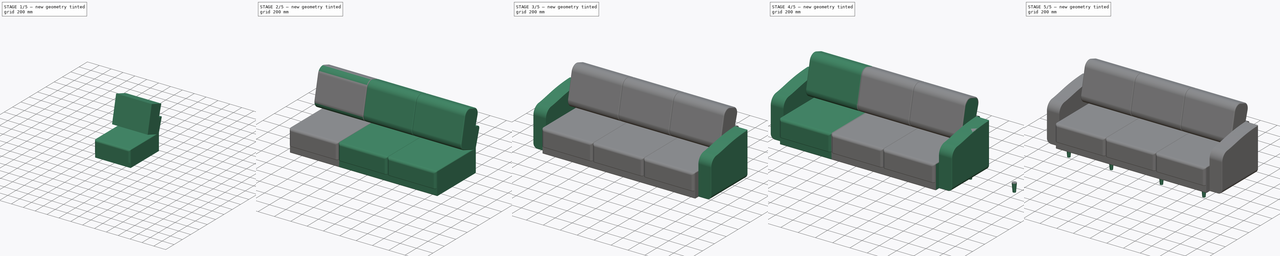
[diagram: build sequence overview — one tinted view per stage of 5, left to right]
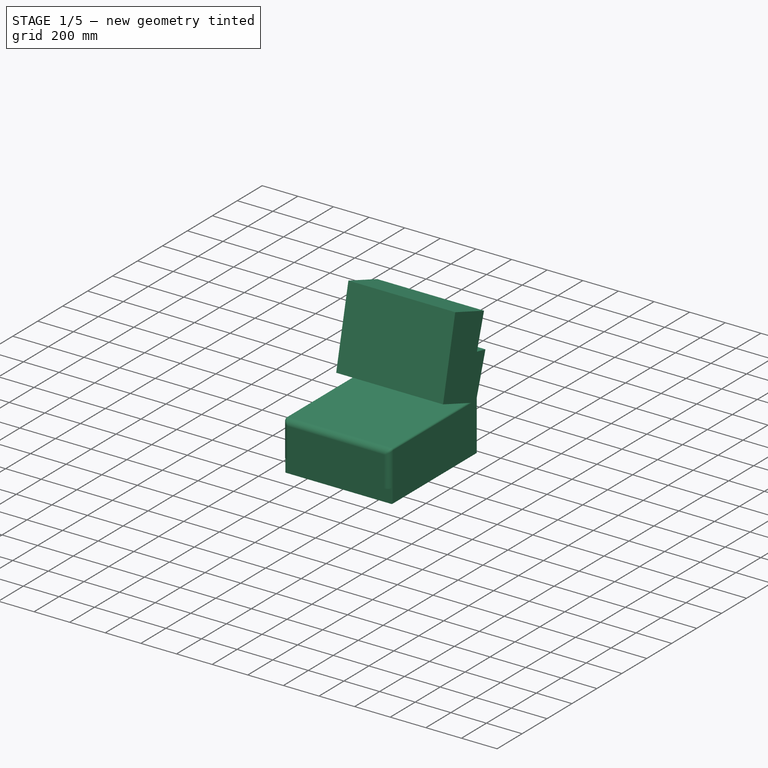
[diagram: stage 1 of 5 — iso view after this stage's code; geometry added in this stage tinted green]
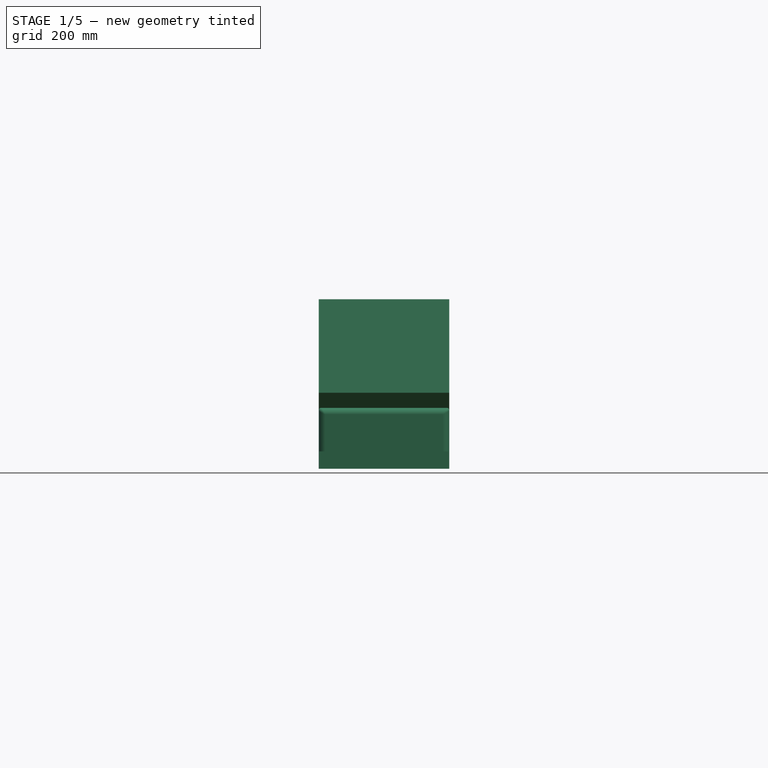
[diagram: stage 1 of 5 — front view after this stage's code; geometry added in this stage tinted green]
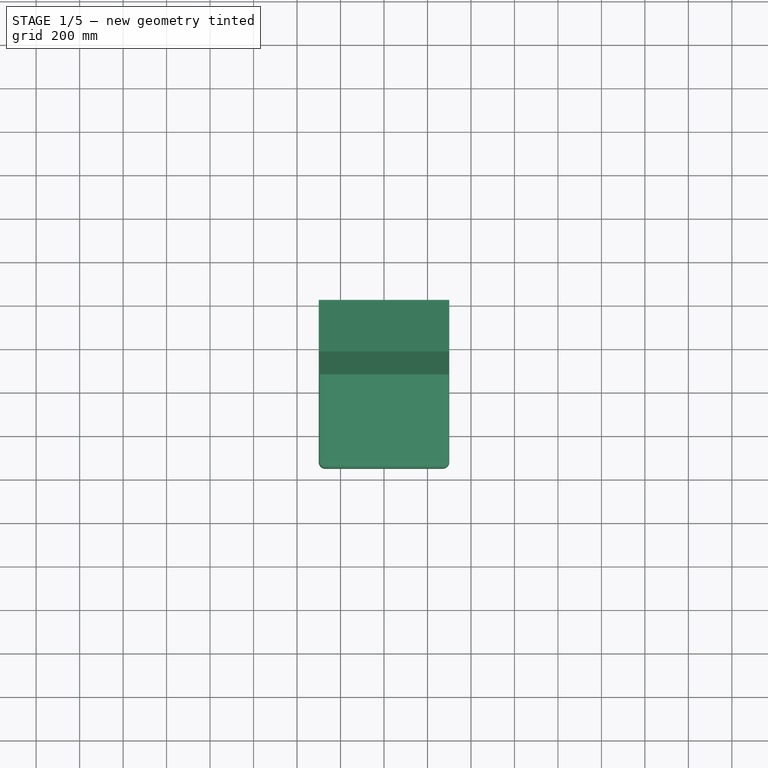
[diagram: stage 1 of 5 — top view after this stage's code; geometry added in this stage tinted green]
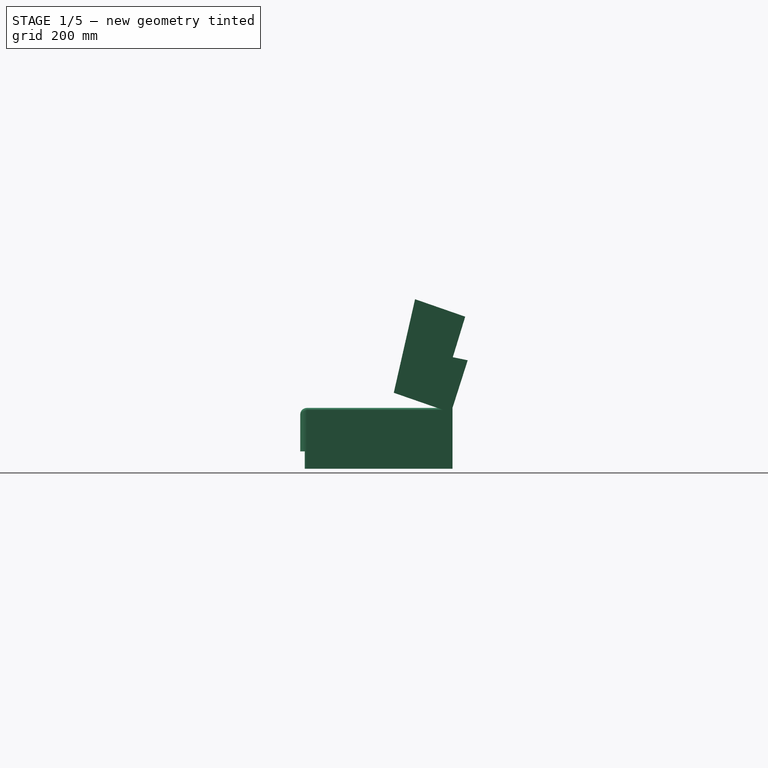
[diagram: stage 1 of 5 — right view after this stage's code; geometry added in this stage tinted green]
FCSTD DOCUMENT  (FreeCAD 1.0R39109 (Git))
Label: sofa
License: All rights reserved
LicenseURL: https://en.wikipedia.org/wiki/All_rights_reserved
objects: Sketcher::SketchObject×17, PartDesign::Pad×14, PartDesign::Fillet×11, PartDesign::Plane×9, PartDesign::Body×9, PartDesign::ShapeBinder×8, PartDesign::Pocket×3, App::Part×3, Part::FeaturePython×2, PartDesign::LinearPattern×1
note: 148 computed .brp shape members not serialized (recipe doc carries the construction recipe); baked Part::Feature solids carry a one-line shape summary decoded from their .brp

FEATURE [Sketcher::SketchObject] Sketch
  ArcFitTolerance = 1e-06
  AttachmentSupport = -> [XZ_Plane]
  FullyConstrained = true
  MakeInternals = false
  MapMode = 5
  Placement = pos=(0,0,0) rot=(1,0,0;1.5708rad)
  sketch-geometry (4):
    g0: LineSegment StartX=-300 StartY=380 StartZ=0 EndX=-300 EndY=180 EndZ=0
    g1: LineSegment StartX=-300 StartY=180 StartZ=0 EndX=300 EndY=180 EndZ=0
    g2: LineSegment StartX=300 StartY=180 StartZ=0 EndX=300 EndY=380 EndZ=0
    g3: LineSegment StartX=300 StartY=380 StartZ=0 EndX=-300 EndY=380 EndZ=0
  constraints (11):
    c: Coincident(g0,g1)
    c: Coincident(g1,g2)
    c: Coincident(g2,g3)
    c: Coincident(g3,g0)
    c: Vertical(g0)
    c: Vertical(g2)
    c: Horizontal(g1)
    c: Distance(g0,g2) = 600
    c: Distance(g1,g3) = 200
    c: Symmetric(g0,g2,g-2)
    c: DistanceY(g-1,g1) = 180
FEATURE [PartDesign::Pad] Pad
  Direction = (0,-1,2e-16)
  Length = 700
  Length2 = 10
  Midplane = true
  Placement = pos=(0,0,0) rot=(1,0,0;1.5708rad)
  Profile = -> Sketch
  ReferenceAxis = -> Sketch [N_Axis]
  Refine = true
  Suppressed = false
  Type = 0
FEATURE [Sketcher::SketchObject] Sketch001
  ArcFitTolerance = 1e-06
  AttachmentSupport = -> [YZ_Plane]
  ExternalGeometry = -> [Pad]
  FullyConstrained = false
  MakeInternals = false
  MapMode = 5
  Placement = pos=(0,0,0) rot=(0.57735,0.57735,0.57735;2.0944rad)
  sketch-geometry (6):
    g0: LineSegment StartX=350 StartY=380 StartZ=0 EndX=420 EndY=599.2 EndZ=0
    g1: LineSegment [constr] StartX=350 StartY=380 StartZ=0 EndX=420 EndY=380 EndZ=0
    g2: LineSegment [constr] StartX=420 StartY=380 StartZ=0 EndX=420 EndY=599.2 EndZ=0
    g3: LineSegment StartX=420 StartY=599.2 StartZ=0 EndX=351.422 EndY=613.236 EndZ=0
    g4: LineSegment StartX=351.422 StartY=613.236 StartZ=0 EndX=280 EndY=380 EndZ=0
    g5: LineSegment StartX=280 StartY=380 StartZ=0 EndX=350 EndY=380 EndZ=0
  constraints (14):
    c: Coincident(g0,g-4)
    c: Coincident(g1,g0)
    c: Horizontal(g1)
    c: Coincident(g2,g1)
    c: Coincident(g2,g0)
    c: Vertical(g2)
    c: Coincident(g3,g0)
    c: PointOnObject(g4,g-3)
    c: Coincident(g5,g4)
    c: Coincident(g5,g0)
    c: DistanceX(g1,g1) = 70
    c: DistanceX(g5,g5) = 70
    c: Equal(g5,g3)
    c: Coincident(g4,g3)
FEATURE [PartDesign::Pad] Pad001
  BaseFeature = -> Pad
  Direction = (1,0,0)
  Length = 600
  Length2 = 10
  Midplane = true
  Placement = pos=(0,0,0) rot=(1,0,0;1.5708rad)
  Profile = -> Sketch001
  ReferenceAxis = -> Sketch001 [N_Axis]
  Suppressed = false
  Type = 0
FEATURE [Sketcher::SketchObject] Sketch002
  ArcFitTolerance = 1e-06
  AttachmentSupport = -> [Pad001]
  ExternalGeometry = -> [Pad001]
  FullyConstrained = false
  MakeInternals = false
  MapMode = 5
  Placement = pos=(300,0,0) rot=(0.707107,0,0.707107;3.14159rad)
  sketch-geometry (4):
    g0: LineSegment StartX=380 StartY=-280 StartZ=0 EndX=449.666 EndY=-80 EndZ=0
    g1: LineSegment StartX=449.666 StartY=-80 StartZ=0 EndX=880 EndY=-177.889 EndZ=0
    g2: LineSegment StartX=880 StartY=-177.889 StartZ=0 EndX=799.667 EndY=-408.511 EndZ=0
    g3: LineSegment StartX=799.667 StartY=-408.511 StartZ=0 EndX=380 EndY=-280 EndZ=0
  constraints (9):
    c: Coincident(g0,g-4)
    c: DistanceY(g0,g0) = 200
    c: Coincident(g1,g0)
    c: DistanceX(g0,g1) = 500
    c: Coincident(g2,g1)
    c: Coincident(g3,g2)
    c: Coincident(g3,g0)
    c: Parallel(g2,g0)
    c: Parallel(g3,g-3)
FEATURE [PartDesign::Pad] Pad002
  BaseFeature = -> Pad001
  Direction = (1,0,-2e-16)
  Length = 600
  Length2 = 10
  Placement = pos=(0,0,0) rot=(1,0,0;1.5708rad)
  Profile = -> Sketch002
  ReferenceAxis = -> Sketch002 [N_Axis]
  Reversed = true
  Suppressed = false
  Type = 0
FEATURE [Sketcher::SketchObject] Sketch003
  ArcFitTolerance = 1e-06
  AttachmentSupport = -> [Pad002]
  ExternalGeometry = -> [Pad002]
  FullyConstrained = false
  MakeInternals = false
  MapMode = 5
  Placement = pos=(300,0,0) rot=(0.707107,0,0.707107;3.14159rad)
  sketch-geometry (4):
    g0: LineSegment StartX=180 StartY=-350 StartZ=0 EndX=180 EndY=329.78 EndZ=0
    g1: LineSegment StartX=180 StartY=329.78 StartZ=0 EndX=100 EndY=329.78 EndZ=0
    g2: LineSegment StartX=100 StartY=329.78 StartZ=0 EndX=100 EndY=-350 EndZ=0
    g3: LineSegment StartX=100 StartY=-350 StartZ=0 EndX=180 EndY=-350 EndZ=0
  constraints (10):
    c: Coincident(g0,g1)
    c: Coincident(g1,g2)
    c: Coincident(g2,g3)
    c: Coincident(g3,g0)
    c: Vertical(g0)
    c: Vertical(g2)
    c: Horizontal(g1)
    c: Horizontal(g3)
    c: Coincident(g0,g-3)
    c: DistanceX(g1,g0) = 80
FEATURE [PartDesign::Pad] Pad003
  BaseFeature = -> Pad002
  Direction = (1,0,-2e-16)
  Length = 600
  Length2 = 10
  Placement = pos=(0,0,0) rot=(1,0,0;1.5708rad)
  Profile = -> Sketch003
  ReferenceAxis = -> Sketch003 [N_Axis]
  Refine = true
  Reversed = true
  Suppressed = false
  Type = 0
FEATURE [PartDesign::Fillet] Fillet
  Base = -> Pad003 [Edge9,Edge10]
  BaseFeature = -> Pad003
  Placement = pos=(0,0,0) rot=(1,0,0;1.5708rad)
  Radius = 10
  Refine = true
  SupportTransform = false
  Suppressed = false
  UseAllEdges = false
FEATURE [PartDesign::Fillet] Fillet001
  Base = -> Fillet [Edge4]
  BaseFeature = -> Fillet
  Placement = pos=(0,0,0) rot=(1,0,0;1.5708rad)
  Radius = 30
  Refine = true
  SupportTransform = false
  Suppressed = false
  UseAllEdges = false
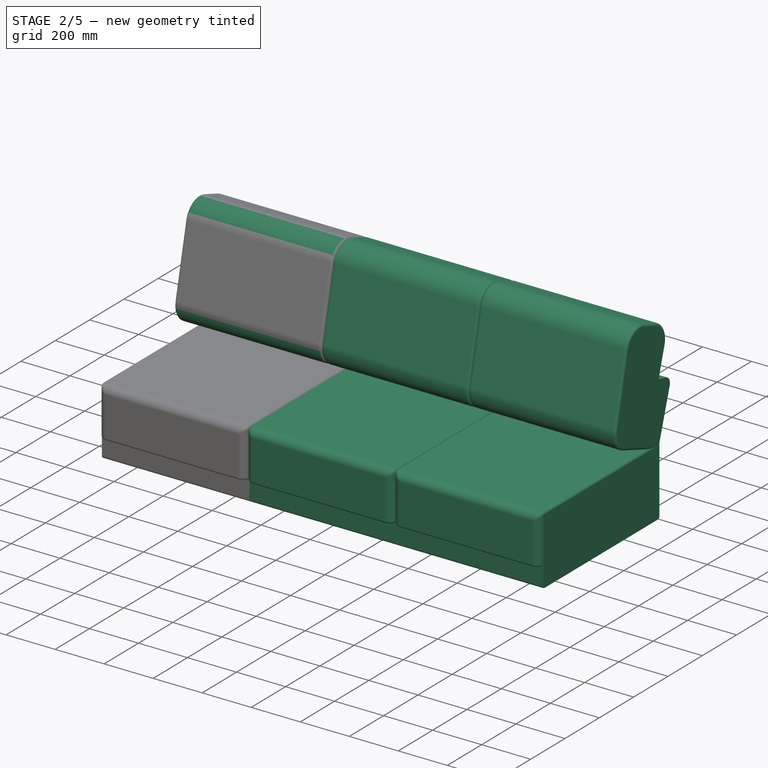
[diagram: stage 2 of 5 — iso view after this stage's code; geometry added in this stage tinted green]
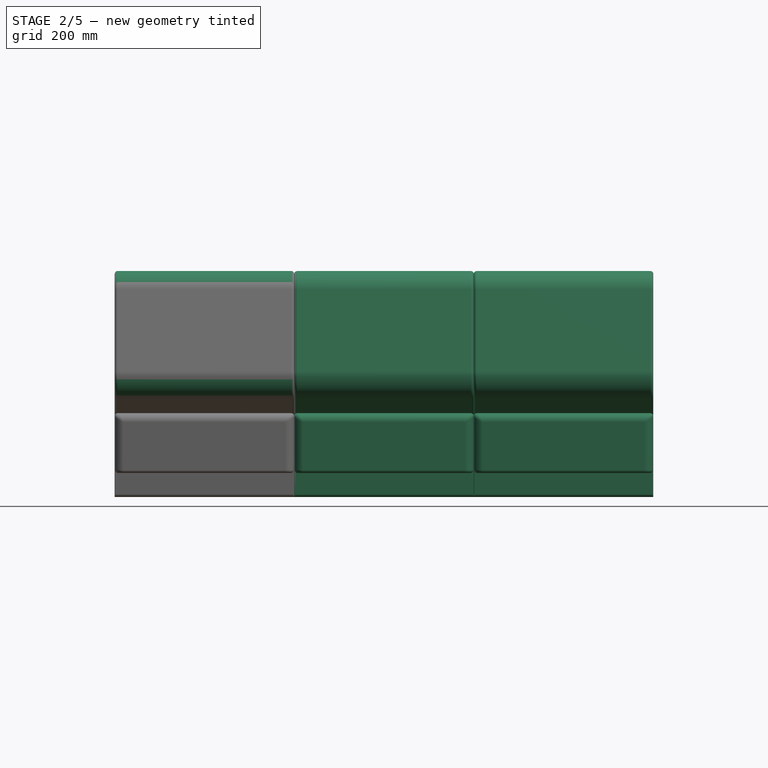
[diagram: stage 2 of 5 — front view after this stage's code; geometry added in this stage tinted green]
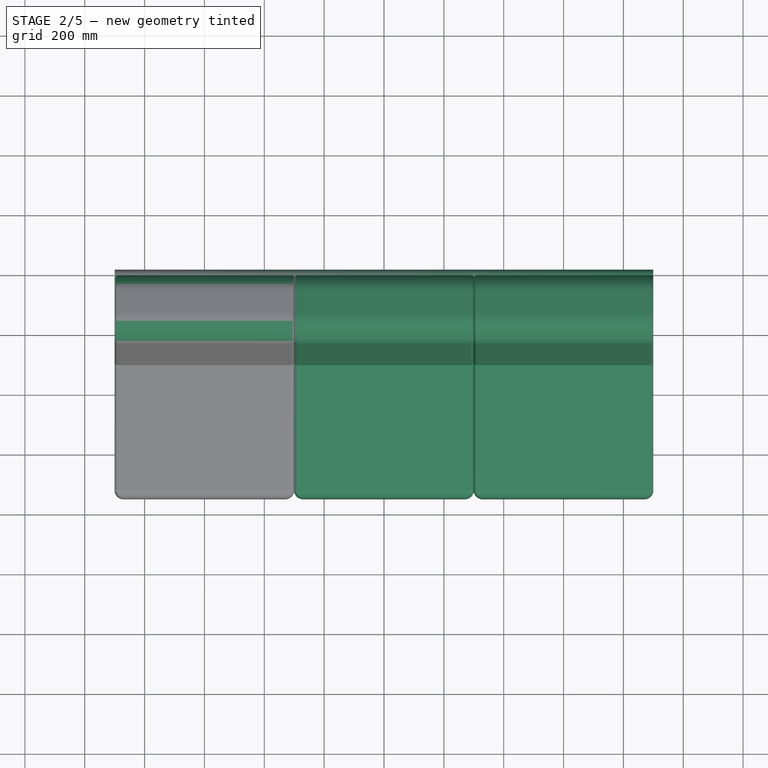
[diagram: stage 2 of 5 — top view after this stage's code; geometry added in this stage tinted green]
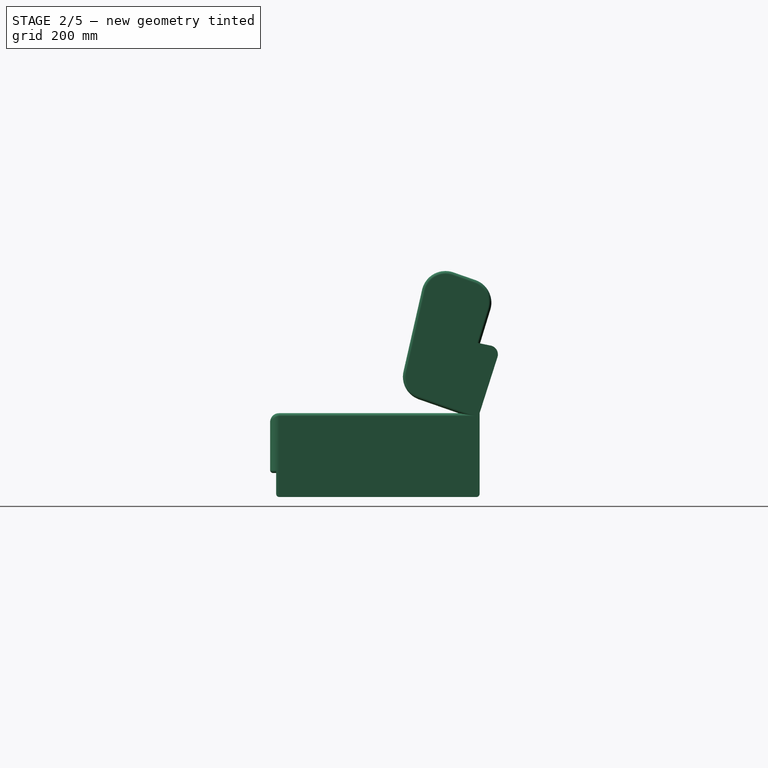
[diagram: stage 2 of 5 — right view after this stage's code; geometry added in this stage tinted green]
FEATURE [PartDesign::Fillet] Fillet002
  Base = -> Fillet001 [Edge1]
  BaseFeature = -> Fillet001
  Placement = pos=(0,0,0) rot=(1,0,0;1.5708rad)
  Radius = 10
  Refine = true
  SupportTransform = false
  Suppressed = false
  UseAllEdges = false
FEATURE [PartDesign::Fillet] Fillet003
  Base = -> Fillet002 [Edge29,Edge41]
  BaseFeature = -> Fillet002
  Placement = pos=(0,0,0) rot=(1,0,0;1.5708rad)
  Radius = 10
  Refine = true
  SupportTransform = false
  Suppressed = false
  UseAllEdges = false
FEATURE [PartDesign::Fillet] Fillet004
  Base = -> Fillet003 [Edge52]
  BaseFeature = -> Fillet003
  Placement = pos=(0,0,0) rot=(1,0,0;1.5708rad)
  Radius = 30
  Refine = true
  SupportTransform = false
  Suppressed = false
  UseAllEdges = false
FEATURE [PartDesign::Fillet] Fillet005
  Base = -> Fillet004 [Edge27,Edge30,Edge36]
  BaseFeature = -> Fillet004
  Placement = pos=(0,0,0) rot=(1,0,0;1.5708rad)
  Radius = 80
  Refine = true
  SupportTransform = false
  Suppressed = false
  UseAllEdges = false
FEATURE [PartDesign::Fillet] Fillet006
  Base = -> Fillet005 [Edge8,Edge33]
  BaseFeature = -> Fillet005
  Placement = pos=(0,0,0) rot=(1,0,0;1.5708rad)
  Radius = 10
  Refine = true
  SupportTransform = false
  Suppressed = false
  UseAllEdges = false
FEATURE [PartDesign::Plane] DatumPlane
  AttachmentSupport = -> [Fillet006]
  Length = 60
  MapMode = 5
  Placement = pos=(300,0,0) rot=(0.707107,0,0.707107;3.14159rad)
  ResizeMode = 0
  Width = 60
FEATURE [PartDesign::LinearPattern] LinearPattern
  BaseFeature = -> Fillet006
  Direction = -> DatumPlane
  Length = 1200
  Mode = 0
  Occurrences = 3
  Offset = 600
  Originals = -> [Fillet006]
  Placement = pos=(0,0,0) rot=(1,0,0;1.5708rad)
  Refine = true
  Suppressed = false
  TransformMode = 1
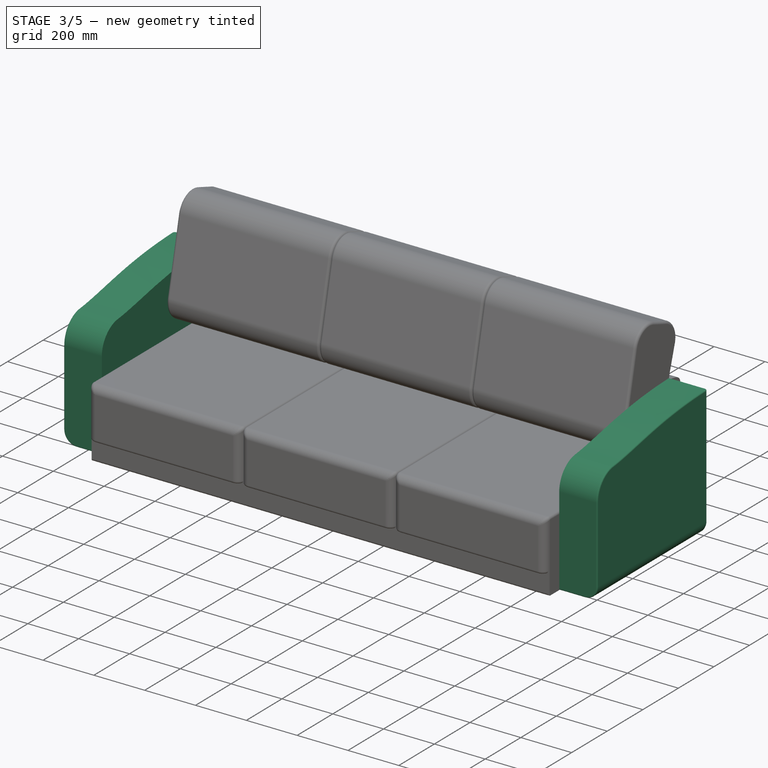
[diagram: stage 3 of 5 — iso view after this stage's code; geometry added in this stage tinted green]
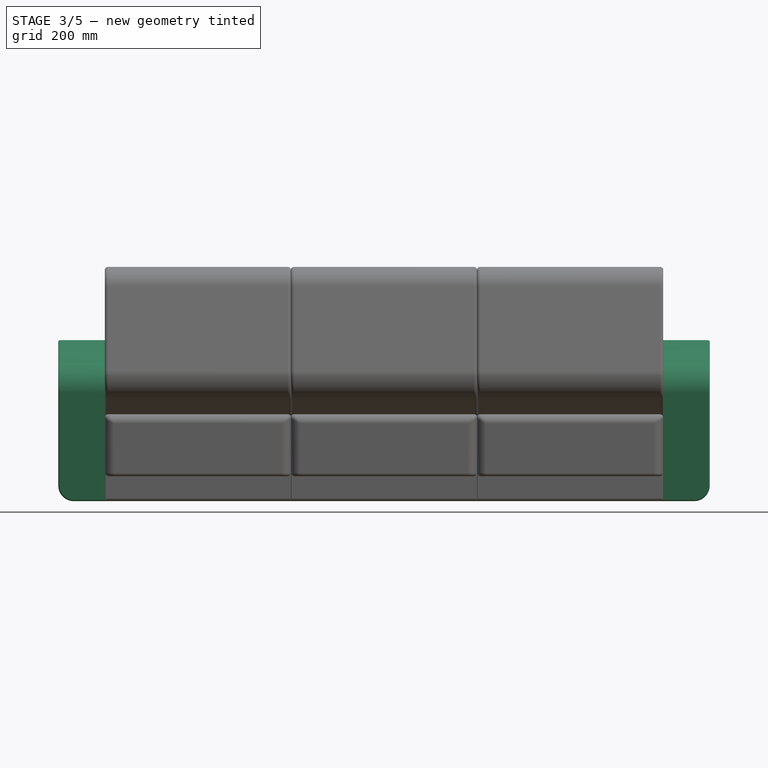
[diagram: stage 3 of 5 — front view after this stage's code; geometry added in this stage tinted green]
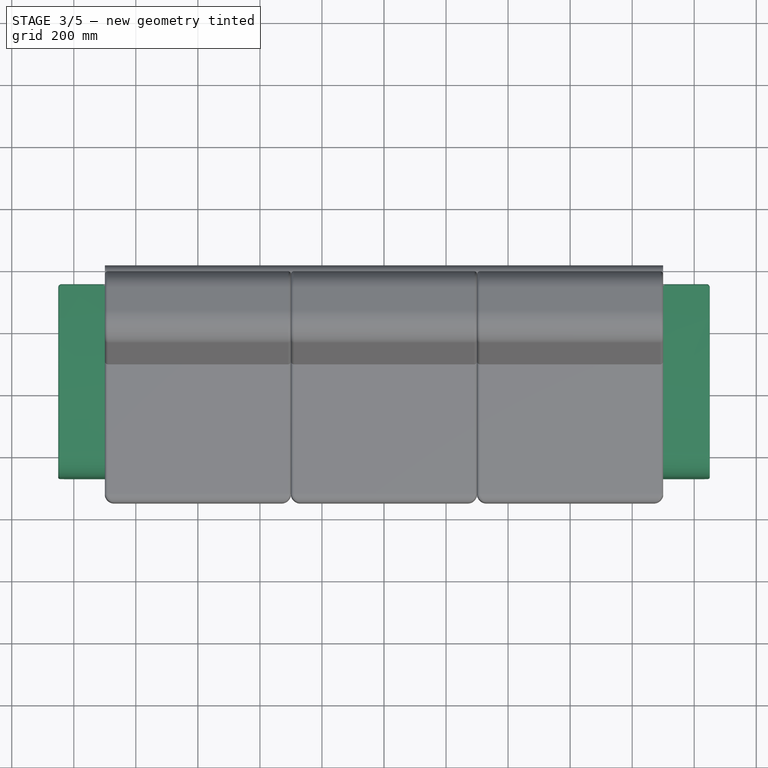
[diagram: stage 3 of 5 — top view after this stage's code; geometry added in this stage tinted green]
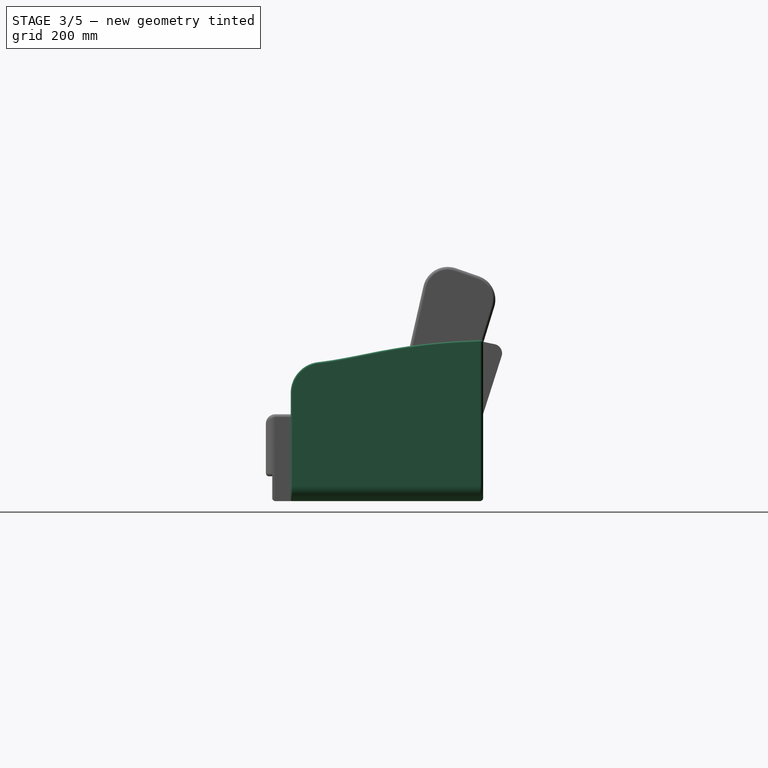
[diagram: stage 3 of 5 — right view after this stage's code; geometry added in this stage tinted green]
FEATURE [Sketcher::SketchObject] Sketch004
  ArcFitTolerance = 1e-06
  AttachmentOffset = pos=(0,0,-80) rot=(0,0,1;0rad)
  AttachmentSupport = -> [LinearPattern]
  ExternalGeometry = -> [LinearPattern]
  FullyConstrained = false
  MakeInternals = false
  MapMode = 5
  Placement = pos=(0,-270,-1.78e-14) rot=(1,0,0;1.5708rad)
  sketch-geometry (8):
    g0: LineSegment StartX=-300 StartY=100 StartZ=0 EndX=-300 EndY=618.908 EndZ=0
    g1: LineSegment StartX=-300 StartY=618.908 StartZ=0 EndX=-450 EndY=618.908 EndZ=0
    g2: LineSegment StartX=-450 StartY=618.908 StartZ=0 EndX=-450 EndY=100 EndZ=0
    g3: LineSegment StartX=-450 StartY=100 StartZ=0 EndX=-300 EndY=100 EndZ=0
    g4: LineSegment StartX=1500 StartY=100 StartZ=0 EndX=1650 EndY=100 EndZ=0
    g5: LineSegment StartX=1650 StartY=100 StartZ=0 EndX=1650 EndY=618.908 EndZ=0
    g6: LineSegment StartX=1650 StartY=618.908 StartZ=0 EndX=1500 EndY=618.908 EndZ=0
    g7: LineSegment StartX=1500 StartY=618.908 StartZ=0 EndX=1500 EndY=100 EndZ=0
  constraints (21):
    c: Coincident(g0,g1)
    c: Coincident(g1,g2)
    c: Coincident(g2,g3)
    c: Coincident(g3,g0)
    c: Vertical(g0)
    c: Vertical(g2)
    c: Horizontal(g1)
    c: Horizontal(g3)
    c: Coincident(g0,g-4)
    c: Coincident(g4,g5)
    c: Coincident(g5,g6)
    c: Coincident(g6,g7)
    c: Coincident(g7,g4)
    c: Horizontal(g4)
    c: Horizontal(g6)
    c: Vertical(g5)
    c: Vertical(g7)
    c: Coincident(g4,g-4)
    c: Equal(g6,g1)
    c: DistanceX(g1,g1) = 150
    c: Equal(g2,g5)
FEATURE [PartDesign::Pad] Pad004
  BaseFeature = -> LinearPattern
  Direction = (0,-1,2e-16)
  Length = 620
  Length2 = 10
  Placement = pos=(0,0,0) rot=(1,0,0;1.5708rad)
  Profile = -> Sketch004
  ReferenceAxis = -> Sketch004 [N_Axis]
  Reversed = true
  Suppressed = false
  Type = 0
FEATURE [Sketcher::SketchObject] Sketch005
  ArcFitTolerance = 1e-06
  AttachmentSupport = -> [Pad004]
  ExternalGeometry = -> [Pad004]
  FullyConstrained = false
  MakeInternals = false
  MapMode = 5
  Placement = pos=(1650,0,0) rot=(0.707107,0,0.707107;3.14159rad)
  sketch-geometry (10):
    g0: Circle [constr] CenterX=618.908 CenterY=-350 CenterZ=0 NormalX=0 NormalY=0 NormalZ=1 AngleXU=0 Radius=1
    g1-g4: Circle [constr] x4 (B-spline internal-alignment scaffolding for g5; pole/knot coordinates omitted)
    g5: BSplineCurve PolesCount=4 KnotsCount=2 Degree=3 IsPeriodic=0
    g6: GeomPoint [constr] X=618.908 Y=-350 Z=0
    g7: GeomPoint [constr] X=544.087 Y=270 Z=0
    g8: LineSegment StartX=544.087 StartY=270 StartZ=0 EndX=618.908 EndY=270 EndZ=0
    g9: LineSegment StartX=618.908 StartY=-350 StartZ=0 EndX=618.908 EndY=270 EndZ=0
  constraints (15):
    c: Weight(g0) = 1
    c: Weight(g1) = 1
    c: Equal(g1,g2)
    c: Equal(g1,g3)
    c: Equal(g1,g4)
    c: InternalAlignment(g1-g4 -> g5) x4
    c: InternalAlignment(g6,g5)
    c: InternalAlignment(g7,g5)
    c: Coincident(g1,g0)
    c: PointOnObject(g4,g-4)
    c: Coincident(g-5,g5)
    c: Coincident(g9,g0)
    c: Coincident(g9,g8)
    c: Vertical(g9)
    c: Coincident(g5,g8)
FEATURE [PartDesign::Pocket] Pocket
  BaseFeature = -> Pad004
  Direction = (-1,0,2e-16)
  Length = 150
  Length2 = 5
  Placement = pos=(0,0,0) rot=(1,0,0;1.5708rad)
  Profile = -> Sketch005
  ReferenceAxis = -> Sketch005 [N_Axis]
  Suppressed = false
  Type = 0
FEATURE [Sketcher::SketchObject] Sketch006
  ArcFitTolerance = 1e-06
  AttachmentSupport = -> [Pocket]
  ExternalGeometry = -> [Pocket]
  FullyConstrained = false
  MakeInternals = false
  MapMode = 5
  Placement = pos=(-450,0,0) rot=(0.707107,0,-0.707107;3.14159rad)
  sketch-geometry (10):
    g0: Circle [constr] CenterX=-618.908 CenterY=-350 CenterZ=0 NormalX=0 NormalY=0 NormalZ=1 AngleXU=0 Radius=1
    g1-g4: Circle [constr] x4 (B-spline internal-alignment scaffolding for g5; pole/knot coordinates omitted)
    g5: BSplineCurve PolesCount=4 KnotsCount=2 Degree=3 IsPeriodic=0
    g6: GeomPoint [constr] X=-618.908 Y=-350 Z=0
    g7: GeomPoint [constr] X=-544.087 Y=270 Z=0
    g8: LineSegment StartX=-544.087 StartY=270 StartZ=0 EndX=-618.908 EndY=270 EndZ=0
    g9: LineSegment StartX=-618.908 StartY=-350 StartZ=0 EndX=-618.908 EndY=270 EndZ=0
  constraints (13):
    c: Weight(g0) = 1
    c: Weight(g1) = 1
    c: Equal(g1,g2)
    c: Equal(g1,g3)
    c: Equal(g1,g4)
    c: InternalAlignment(g1-g4 -> g5) x4
    c: InternalAlignment(g6,g5)
    c: InternalAlignment(g7,g5)
    c: Coincident(g1,g0)
    c: Coincident(g9,g0)
    c: Coincident(g9,g8)
    c: Vertical(g9)
    c: Coincident(g5,g8)
FEATURE [PartDesign::Pocket] Pocket001
  BaseFeature = -> Pocket
  Direction = (1,0,2e-16)
  Length = 150
  Length2 = 5
  Placement = pos=(0,0,0) rot=(1,0,0;1.5708rad)
  Profile = -> Sketch006
  ReferenceAxis = -> Sketch006 [N_Axis]
  Suppressed = false
  Type = 0
FEATURE [PartDesign::Fillet] Fillet007
  Base = -> Pocket001 [Edge94,Edge87]
  BaseFeature = -> Pocket001
  Placement = pos=(0,0,0) rot=(1,0,0;1.5708rad)
  Radius = 50
  SupportTransform = false
  Suppressed = false
  UseAllEdges = false
FEATURE [PartDesign::Fillet] Fillet008
  Base = -> Fillet007 [Edge18,Edge155]
  BaseFeature = -> Fillet007
  Placement = pos=(0,0,0) rot=(1,0,0;1.5708rad)
  Radius = 9.9
  Refine = true
  SupportTransform = false
  Suppressed = false
  UseAllEdges = false
FEATURE [PartDesign::Fillet] Fillet009
  Base = -> Fillet008 [Edge102,Edge54]
  BaseFeature = -> Fillet008
  Placement = pos=(0,0,0) rot=(1,0,0;1.5708rad)
  Radius = 100
  Refine = true
  SupportTransform = false
  Suppressed = false
  UseAllEdges = false
FEATURE [PartDesign::Fillet] Fillet010
  Base = -> Fillet009 [Edge147,Edge9]
  BaseFeature = -> Fillet009
  Placement = pos=(0,0,0) rot=(1,0,0;1.5708rad)
  Radius = 5
  Refine = true
  SupportTransform = false
  Suppressed = false
  UseAllEdges = false
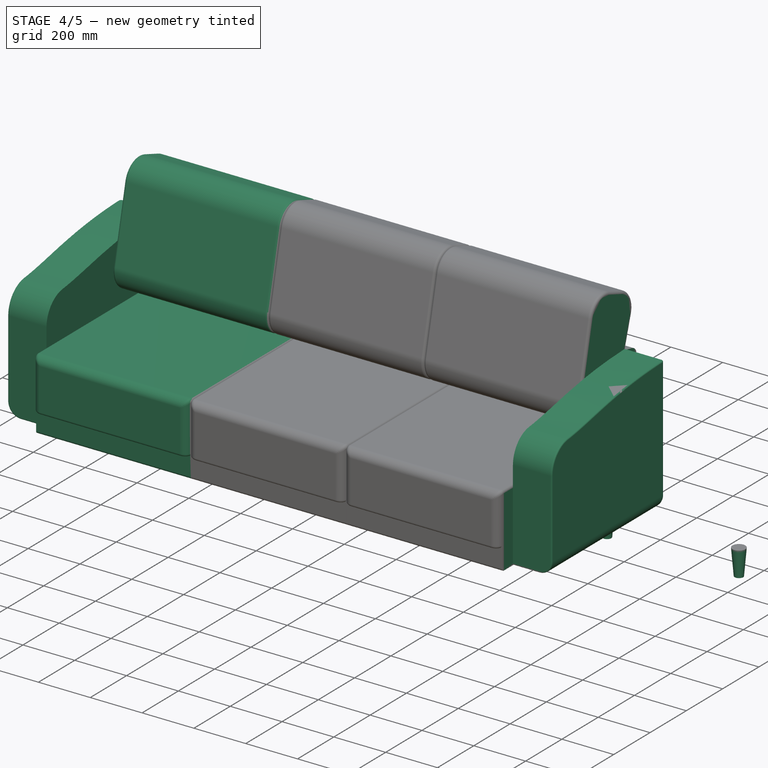
[diagram: stage 4 of 5 — iso view after this stage's code; geometry added in this stage tinted green]
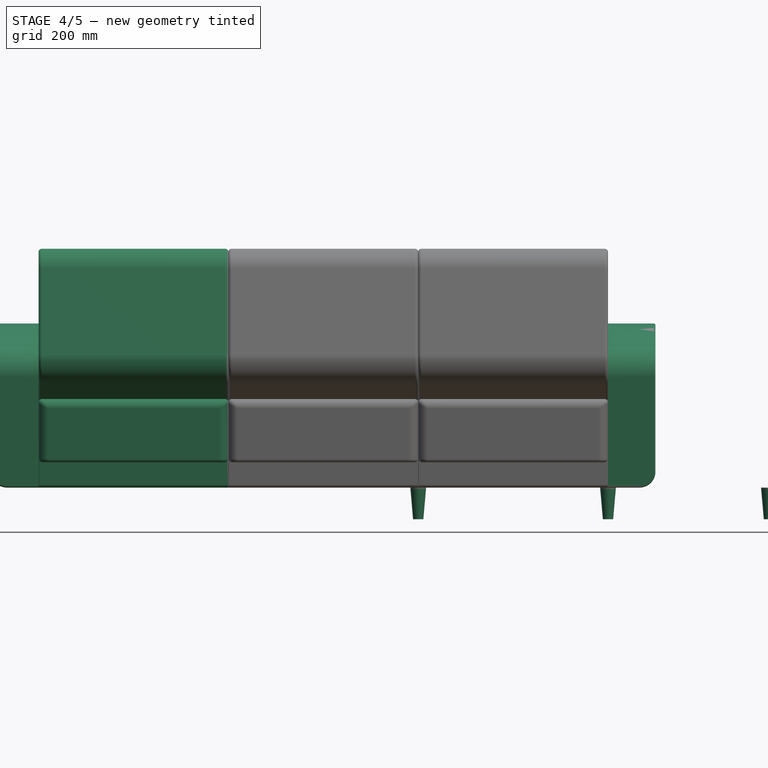
[diagram: stage 4 of 5 — front view after this stage's code; geometry added in this stage tinted green]
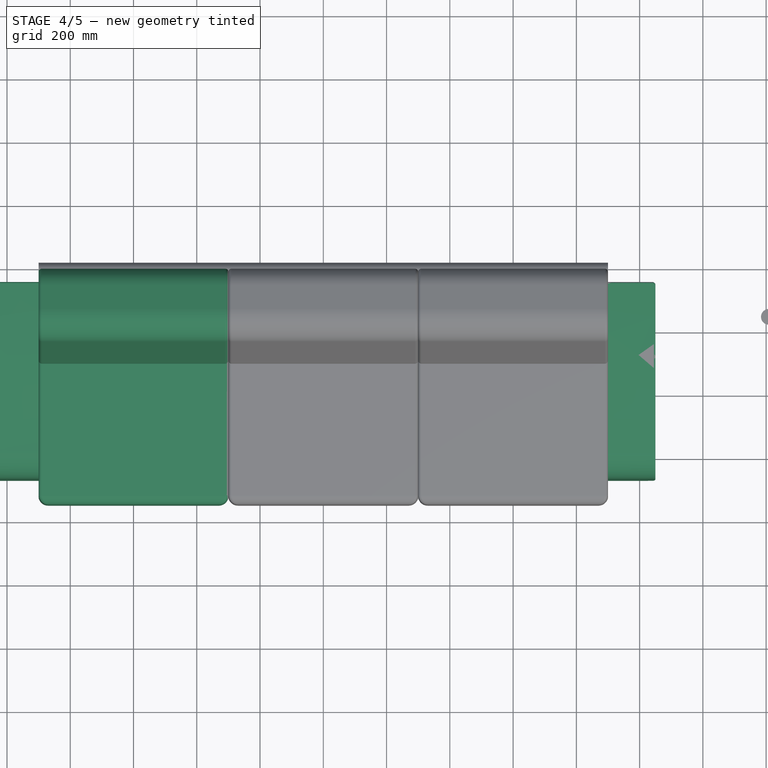
[diagram: stage 4 of 5 — top view after this stage's code; geometry added in this stage tinted green]
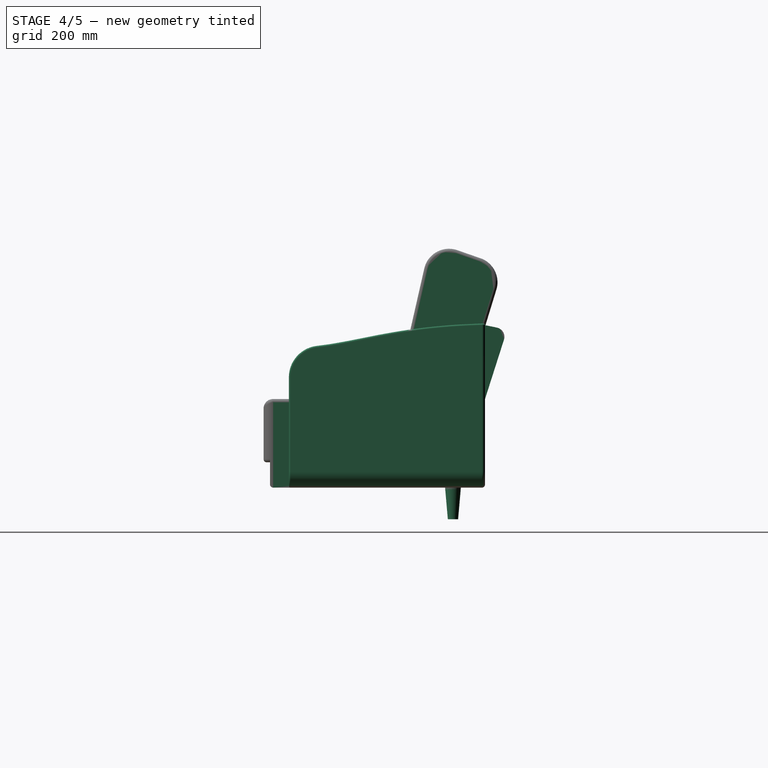
[diagram: stage 4 of 5 — right view after this stage's code; geometry added in this stage tinted green]
FEATURE [Sketcher::SketchObject] Sketch007
  ArcFitTolerance = 1e-06
  AttachmentSupport = -> [Fillet010]
  ExternalGeometry = -> [Fillet010]
  FullyConstrained = false
  MakeInternals = false
  MapMode = 5
  Placement = pos=(0,3e-14,100) rot=(1,0,0;3.14159rad)
  sketch-geometry (14):
    g0: Circle CenterX=900 CenterY=235.906 CenterZ=0 NormalX=0 NormalY=0 NormalZ=1 AngleXU=0 Radius=25
    g1: Circle CenterX=300 CenterY=235.906 CenterZ=0 NormalX=0 NormalY=0 NormalZ=1 AngleXU=0 Radius=25
    g2: Circle CenterX=300 CenterY=-248.707 CenterZ=0 NormalX=0 NormalY=0 NormalZ=1 AngleXU=0 Radius=25
    g3: Circle CenterX=900 CenterY=-248.707 CenterZ=0 NormalX=0 NormalY=0 NormalZ=1 AngleXU=0 Radius=25
    g4: Circle CenterX=1408.78 CenterY=235.906 CenterZ=0 NormalX=0 NormalY=0 NormalZ=1 AngleXU=0 Radius=25
    g5: Circle CenterX=1408.78 CenterY=-248.707 CenterZ=0 NormalX=0 NormalY=0 NormalZ=1 AngleXU=0 Radius=25
    g6: Circle CenterX=-208.781 CenterY=-248.707 CenterZ=0 NormalX=0 NormalY=0 NormalZ=1 AngleXU=0 Radius=25
    g7: Circle CenterX=-208.781 CenterY=235.906 CenterZ=0 NormalX=0 NormalY=0 NormalZ=1 AngleXU=0 Radius=25
    g8: LineSegment [constr] StartX=900 StartY=320 StartZ=0 EndX=900 EndY=235.906 EndZ=0
    g9: LineSegment [constr] StartX=300 StartY=320 StartZ=0 EndX=300 EndY=235.906 EndZ=0
    g10: LineSegment [constr] StartX=900 StartY=235.906 StartZ=0 EndX=1408.78 EndY=235.906 EndZ=0
    g11: LineSegment [constr] StartX=300 StartY=235.906 StartZ=0 EndX=-208.781 EndY=235.906 EndZ=0
    g12: LineSegment [constr] StartX=-208.781 StartY=-248.707 StartZ=0 EndX=300 EndY=-248.707 EndZ=0
    g13: LineSegment [constr] StartX=1408.78 StartY=-248.707 StartZ=0 EndX=900 EndY=-248.707 EndZ=0
  constraints (33):
    c: Equal(g7,g1)
    c: Equal(g1,g0)
    c: Equal(g0,g4)
    c: Equal(g4,g5)
    c: Equal(g5,g3)
    c: Equal(g3,g2)
    c: Equal(g2,g6)
    c: Horizontal(g7,g1)
    c: Horizontal(g1,g0)
    c: Horizontal(g0,g4)
    c: Horizontal(g6,g2)
    c: Horizontal(g2,g3)
    c: Horizontal(g3,g5)
    c: Coincident(g8,g-4)
    c: Vertical(g8)
    c: Coincident(g9,g-3)
    c: Vertical(g9)
    c: Coincident(g10,g0)
    c: Coincident(g10,g4)
    c: Coincident(g11,g1)
    c: Coincident(g11,g7)
    c: Equal(g11,g10)
    c: Coincident(g12,g6)
    c: Coincident(g12,g2)
    c: Coincident(g13,g5)
    c: Coincident(g13,g3)
    c: Equal(g13,g12)
    c: Equal(g12,g10)
    c: Coincident(g1,g9)
    c: Coincident(g8,g0)
    c: Vertical(g0,g3)
    c: Vertical(g1,g2)
    c: Diameter(g7) = 50
FEATURE [PartDesign::Pad] Pad005
  BaseFeature = -> Fillet010
  Direction = (0,0,-1)
  Length = 100
  Length2 = 10
  Placement = pos=(0,0,0) rot=(1,0,0;1.5708rad)
  Profile = -> Sketch007
  ReferenceAxis = -> Sketch007 [N_Axis]
  Refine = true
  Suppressed = false
  TaperAngle = -5
  Type = 0
FEATURE [PartDesign::Body] Body005
  AllowCompound = false
  Group = -> [DatumPlane005,CopyPad009,Sketch012,Pad010]
  Origin = -> Origin008
  Placement = pos=(-600,0,0) rot=(0,0,1;0rad)
  Tip = -> Pad010
FEATURE [PartDesign::ShapeBinder] CopyPad010
  Placement = pos=(0,0,0) rot=(1,0,0;1.5708rad)
  TraceSupport = false
FEATURE [PartDesign::Plane] DatumPlane006
  AttachmentSupport = -> [CopyPad010]
  Length = 60
  MapMode = 5
  Placement = pos=(0,7.8e-15,100) rot=(1,0,0;3.14159rad)
  ResizeMode = 0
  Width = 60
FEATURE [Sketcher::SketchObject] Sketch013
  ArcFitTolerance = 1e-06
  AttachmentSupport = -> [DatumPlane006]
  ExternalGeometry = -> [CopyPad010]
  FullyConstrained = true
  MakeInternals = false
  MapMode = 5
  Placement = pos=(0,7.8e-15,100) rot=(1,0,0;3.14159rad)
  sketch-geometry (1):
    g0: Circle CenterX=300 CenterY=-248.707 CenterZ=0 NormalX=0 NormalY=0 NormalZ=1 AngleXU=0 Radius=25
  constraints (2):
    c: Coincident(g0,g-3)
    c: Equal(g0,g-3)
FEATURE [PartDesign::Pad] Pad011
  Direction = (0,0,-1)
  Length = 100
  Length2 = 10
  Placement = pos=(0,7.44e-14,100) rot=(1,0,0;3.14159rad)
  Profile = -> Sketch013
  ReferenceAxis = -> Sketch013 [N_Axis]
  Refine = true
  Suppressed = false
  TaperAngle = -5
  Type = 0
FEATURE [PartDesign::Body] Body006
  AllowCompound = false
  Group = -> [DatumPlane006,CopyPad010,Sketch013,Pad011]
  Origin = -> Origin009
  Placement = pos=(-600,0,0) rot=(0,0,1;0rad)
  Tip = -> Pad011
FEATURE [PartDesign::ShapeBinder] CopyPad011
  Placement = pos=(0,0,0) rot=(1,0,0;1.5708rad)
  TraceSupport = false
FEATURE [PartDesign::Plane] DatumPlane007
  AttachmentSupport = -> [CopyPad011]
  Length = 60
  MapMode = 5
  Placement = pos=(0,7.8e-15,100) rot=(1,0,0;3.14159rad)
  ResizeMode = 0
  Width = 60
FEATURE [Sketcher::SketchObject] Sketch014
  ArcFitTolerance = 1e-06
  AttachmentSupport = -> [DatumPlane007]
  ExternalGeometry = -> [CopyPad011]
  FullyConstrained = true
  MakeInternals = false
  MapMode = 5
  Placement = pos=(0,7.8e-15,100) rot=(1,0,0;3.14159rad)
  sketch-geometry (1):
    g0: Circle CenterX=900 CenterY=-248.707 CenterZ=0 NormalX=0 NormalY=0 NormalZ=1 AngleXU=0 Radius=25
  constraints (2):
    c: Coincident(g0,g-3)
    c: Equal(g0,g-3)
FEATURE [PartDesign::Pad] Pad012
  Direction = (0,0,-1)
  Length = 100
  Length2 = 10
  Placement = pos=(0,3e-14,100) rot=(1,0,0;3.14159rad)
  Profile = -> Sketch014
  ReferenceAxis = -> Sketch014 [N_Axis]
  Refine = true
  Suppressed = false
  TaperAngle = -5
  Type = 0
FEATURE [PartDesign::Body] Body007
  AllowCompound = false
  Group = -> [DatumPlane007,CopyPad011,Sketch014,Pad012]
  Origin = -> Origin010
  Placement = pos=(-600,0,0) rot=(0,0,1;0rad)
  Tip = -> Pad012
FEATURE [PartDesign::ShapeBinder] CopyPad012
  Placement = pos=(0,0,0) rot=(1,0,0;1.5708rad)
  TraceSupport = false
FEATURE [PartDesign::Plane] DatumPlane008
  AttachmentSupport = -> [CopyPad012]
  Length = 60
  MapMode = 5
  Placement = pos=(0,7.8e-15,100) rot=(1,0,0;3.14159rad)
  ResizeMode = 0
  Width = 60
FEATURE [Sketcher::SketchObject] Sketch015
  ArcFitTolerance = 1e-06
  AttachmentSupport = -> [DatumPlane008]
  ExternalGeometry = -> [CopyPad012]
  FullyConstrained = true
  MakeInternals = false
  MapMode = 5
  Placement = pos=(0,7.8e-15,100) rot=(1,0,0;3.14159rad)
  sketch-geometry (1):
    g0: Circle CenterX=1408.78 CenterY=-248.707 CenterZ=0 NormalX=0 NormalY=0 NormalZ=1 AngleXU=0 Radius=25
  constraints (2):
    c: Coincident(g0,g-3)
    c: Equal(g0,g-3)
FEATURE [PartDesign::Pad] Pad013
  Direction = (0,0,-1)
  Length = 100
  Length2 = 10
  Placement = pos=(0,7.44e-14,100) rot=(1,0,0;3.14159rad)
  Profile = -> Sketch015
  ReferenceAxis = -> Sketch015 [N_Axis]
  Refine = true
  Suppressed = false
  TaperAngle = -5
  Type = 0
FEATURE [Sketcher::SketchObject] Sketch016
  ArcFitTolerance = 1e-06
  AttachmentSupport = -> [Pad005]
  FullyConstrained = false
  MakeInternals = false
  MapMode = 5
  Placement = pos=(0,0,2.89e-14) rot=(1,0,0;3.14159rad)
  sketch-geometry (4):
    g0: LineSegment StartX=-340.164 StartY=321.267 StartZ=0 EndX=-340.164 EndY=-393.446 EndZ=0
    g1: LineSegment StartX=-340.164 StartY=-393.446 StartZ=0 EndX=1597.02 EndY=-393.446 EndZ=0
    g2: LineSegment StartX=1597.02 StartY=-393.446 StartZ=0 EndX=1597.02 EndY=321.267 EndZ=0
    g3: LineSegment StartX=1597.02 StartY=321.267 StartZ=0 EndX=-340.164 EndY=321.267 EndZ=0
  constraints (8):
    c: Coincident(g0,g1)
    c: Coincident(g1,g2)
    c: Coincident(g2,g3)
    c: Coincident(g3,g0)
    c: Vertical(g0)
    c: Vertical(g2)
    c: Horizontal(g1)
    c: Horizontal(g3)
FEATURE [PartDesign::Pocket] Pocket002
  BaseFeature = -> Pad005
  Direction = (0,0,1)
  Length = 100
  Length2 = 5
  Placement = pos=(0,0,0) rot=(1,0,0;1.5708rad)
  Profile = -> Sketch016
  ReferenceAxis = -> Sketch016 [N_Axis]
  Refine = true
  Suppressed = false
  Type = 0
FEATURE [PartDesign::Body] Body
  AllowCompound = false
  Group = -> [Sketch,Pad,Sketch001,Pad001,Sketch002,Pad002,Sketch003,Pad003,Fillet,Fillet001,Fillet002,Fillet003,Fillet004,Fillet005,Fillet006,DatumPlane,LinearPattern,Sketch004,Pad004,Sketch005,Pocket,Sketch006,Pocket001,Fillet007,Fillet008,Fillet009,Fillet010,Sketch007,Pad005,Sketch016,Pocket002]
  Origin = -> Origin
  Placement = pos=(-600,0,0) rot=(0,0,1;0rad)
  Tip = -> Pocket002
FEATURE [App::Part] Part001  label="body_p"
  Group = -> [Body]
  Origin = -> Origin012
  Placement = pos=(-600,0,0) rot=(0,0,1;0rad)
FEATURE [Part::FeaturePython] Clone  label="body_clone"  # Draft clone (typed FeaturePython)
  AttacherType = Attacher::AttachEngine3D
  Fuse = false
  Objects = -> [Part001]
  Scale = (1,1,1)
FEATURE [App::Part] Part002  label="sofa"
  Group = -> [Clone001,Clone]
  Origin = -> Origin013
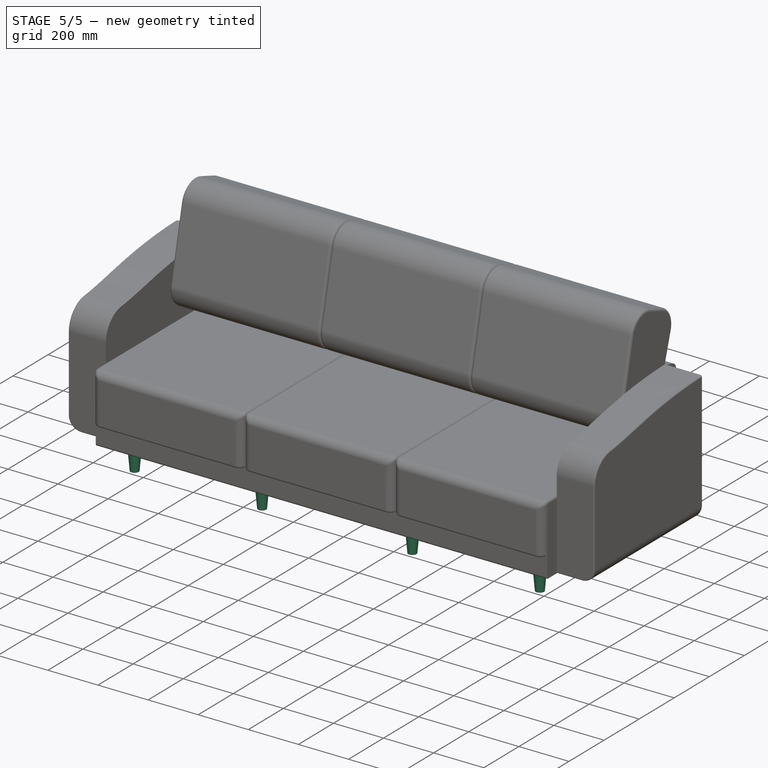
[diagram: stage 5 of 5 — iso view after this stage's code; geometry added in this stage tinted green]
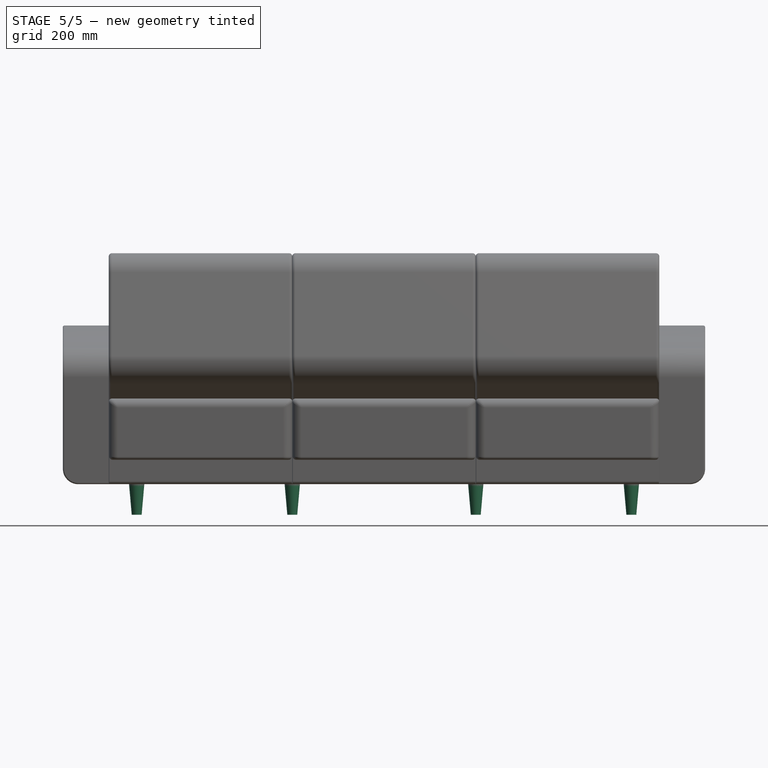
[diagram: stage 5 of 5 — front view after this stage's code; geometry added in this stage tinted green]
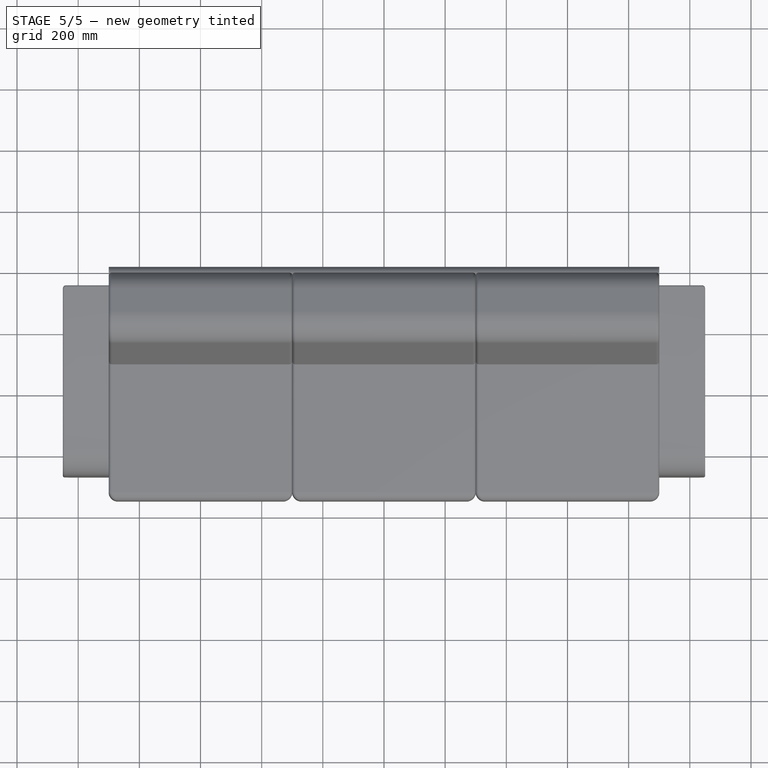
[diagram: stage 5 of 5 — top view after this stage's code; geometry added in this stage tinted green]
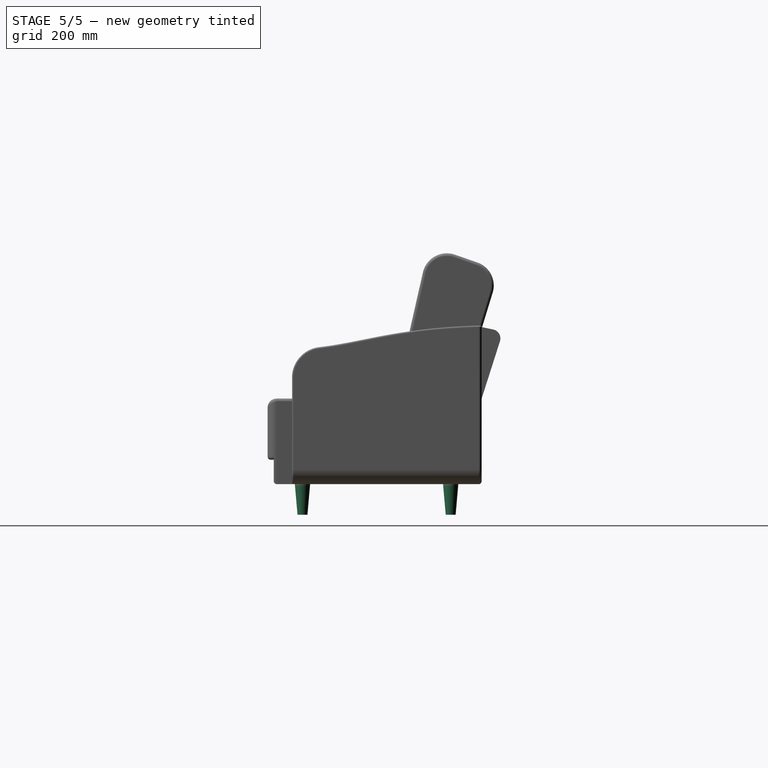
[diagram: stage 5 of 5 — right view after this stage's code; geometry added in this stage tinted green]
FEATURE [PartDesign::ShapeBinder] CopyPad005
  Placement = pos=(0,0,0) rot=(1,0,0;1.5708rad)
  TraceSupport = false
FEATURE [PartDesign::Plane] DatumPlane001
  AttachmentSupport = -> [CopyPad005]
  Length = 60
  MapMode = 5
  Placement = pos=(0,7.8e-15,100) rot=(1,0,0;3.14159rad)
  ResizeMode = 0
  Width = 60
FEATURE [Sketcher::SketchObject] Sketch008
  ArcFitTolerance = 1e-06
  AttachmentSupport = -> [DatumPlane001]
  ExternalGeometry = -> [CopyPad005]
  FullyConstrained = true
  MakeInternals = false
  MapMode = 5
  Placement = pos=(0,7.8e-15,100) rot=(1,0,0;3.14159rad)
  sketch-geometry (1):
    g0: Circle CenterX=-208.781 CenterY=235.906 CenterZ=0 NormalX=0 NormalY=0 NormalZ=1 AngleXU=0 Radius=25
  constraints (2):
    c: Coincident(g0,g-3)
    c: Equal(g0,g-3)
FEATURE [PartDesign::Pad] Pad006
  Direction = (0,0,-1)
  Length = 100
  Length2 = 10
  Placement = pos=(0,5.22e-14,100) rot=(1,0,0;3.14159rad)
  Profile = -> Sketch008
  ReferenceAxis = -> Sketch008 [N_Axis]
  Refine = true
  Suppressed = false
  TaperAngle = -5
  Type = 0
FEATURE [PartDesign::Body] Body001
  AllowCompound = false
  Group = -> [DatumPlane001,CopyPad005,Sketch008,Pad006]
  Origin = -> Origin003
  Placement = pos=(-600,0,0) rot=(0,0,1;0rad)
  Tip = -> Pad006
FEATURE [PartDesign::ShapeBinder] CopyPad006
  Placement = pos=(0,0,0) rot=(1,0,0;1.5708rad)
  TraceSupport = false
FEATURE [PartDesign::Plane] DatumPlane002
  AttachmentSupport = -> [CopyPad006]
  Length = 60
  MapMode = 5
  Placement = pos=(0,7.8e-15,100) rot=(1,0,0;3.14159rad)
  ResizeMode = 0
  Width = 60
FEATURE [Sketcher::SketchObject] Sketch009
  ArcFitTolerance = 1e-06
  AttachmentSupport = -> [DatumPlane002]
  ExternalGeometry = -> [CopyPad006]
  FullyConstrained = true
  MakeInternals = false
  MapMode = 5
  Placement = pos=(0,7.8e-15,100) rot=(1,0,0;3.14159rad)
  sketch-geometry (1):
    g0: Circle CenterX=300 CenterY=235.906 CenterZ=0 NormalX=0 NormalY=0 NormalZ=1 AngleXU=0 Radius=25
  constraints (2):
    c: Coincident(g0,g-3)
    c: Equal(g0,g-3)
FEATURE [PartDesign::Pad] Pad007
  Direction = (0,0,-1)
  Length = 100
  Length2 = 10
  Placement = pos=(0,7.44e-14,100) rot=(1,0,0;3.14159rad)
  Profile = -> Sketch009
  ReferenceAxis = -> Sketch009 [N_Axis]
  Refine = true
  Suppressed = false
  TaperAngle = -5
  Type = 0
FEATURE [PartDesign::Body] Body002
  AllowCompound = false
  Group = -> [DatumPlane002,CopyPad006,Sketch009,Pad007]
  Origin = -> Origin004
  Placement = pos=(-600,0,0) rot=(0,0,1;0rad)
  Tip = -> Pad007
FEATURE [PartDesign::ShapeBinder] CopyPad007
  Placement = pos=(0,0,0) rot=(1,0,0;1.5708rad)
  TraceSupport = false
FEATURE [PartDesign::Plane] DatumPlane003
  AttachmentSupport = -> [CopyPad007]
  Length = 60
  MapMode = 5
  Placement = pos=(0,7.8e-15,100) rot=(1,0,0;3.14159rad)
  ResizeMode = 0
  Width = 60
FEATURE [Sketcher::SketchObject] Sketch010
  ArcFitTolerance = 1e-06
  AttachmentSupport = -> [DatumPlane003]
  ExternalGeometry = -> [CopyPad007]
  FullyConstrained = true
  MakeInternals = false
  MapMode = 5
  Placement = pos=(0,7.8e-15,100) rot=(1,0,0;3.14159rad)
  sketch-geometry (1):
    g0: Circle CenterX=900 CenterY=235.906 CenterZ=0 NormalX=0 NormalY=0 NormalZ=1 AngleXU=0 Radius=25
  constraints (2):
    c: Coincident(g0,g-3)
    c: Equal(g0,g-3)
FEATURE [PartDesign::Pad] Pad008
  Direction = (0,0,-1)
  Length = 100
  Length2 = 10
  Placement = pos=(0,7.44e-14,100) rot=(1,0,0;3.14159rad)
  Profile = -> Sketch010
  ReferenceAxis = -> Sketch010 [N_Axis]
  Refine = true
  Suppressed = false
  TaperAngle = -5
  Type = 0
FEATURE [PartDesign::Body] Body003
  AllowCompound = false
  Group = -> [DatumPlane003,CopyPad007,Sketch010,Pad008]
  Origin = -> Origin006
  Placement = pos=(-600,0,0) rot=(0,0,1;0rad)
  Tip = -> Pad008
FEATURE [PartDesign::ShapeBinder] CopyPad008
  Placement = pos=(0,0,0) rot=(1,0,0;1.5708rad)
  TraceSupport = false
FEATURE [PartDesign::Plane] DatumPlane004
  AttachmentSupport = -> [CopyPad008]
  Length = 60
  MapMode = 5
  Placement = pos=(0,7.8e-15,100) rot=(1,0,0;3.14159rad)
  ResizeMode = 0
  Width = 60
FEATURE [Sketcher::SketchObject] Sketch011
  ArcFitTolerance = 1e-06
  AttachmentSupport = -> [DatumPlane004]
  ExternalGeometry = -> [CopyPad008]
  FullyConstrained = true
  MakeInternals = false
  MapMode = 5
  Placement = pos=(0,7.8e-15,100) rot=(1,0,0;3.14159rad)
  sketch-geometry (1):
    g0: Circle CenterX=1408.78 CenterY=235.906 CenterZ=0 NormalX=0 NormalY=0 NormalZ=1 AngleXU=0 Radius=25
  constraints (2):
    c: Coincident(g0,g-3)
    c: Equal(g0,g-3)
FEATURE [PartDesign::Pad] Pad009
  Direction = (0,0,-1)
  Length = 100
  Length2 = 10
  Placement = pos=(0,7.44e-14,100) rot=(1,0,0;3.14159rad)
  Profile = -> Sketch011
  ReferenceAxis = -> Sketch011 [N_Axis]
  Refine = true
  Suppressed = false
  TaperAngle = -5
  Type = 0
FEATURE [PartDesign::Body] Body004
  AllowCompound = false
  Group = -> [DatumPlane004,CopyPad008,Sketch011,Pad009]
  Origin = -> Origin007
  Placement = pos=(-600,0,0) rot=(0,0,1;0rad)
  Tip = -> Pad009
FEATURE [PartDesign::ShapeBinder] CopyPad009
  Placement = pos=(0,0,0) rot=(1,0,0;1.5708rad)
  TraceSupport = false
FEATURE [PartDesign::Plane] DatumPlane005
  AttachmentSupport = -> [CopyPad009]
  Length = 60
  MapMode = 5
  Placement = pos=(0,7.8e-15,100) rot=(1,0,0;3.14159rad)
  ResizeMode = 0
  Width = 60
FEATURE [Sketcher::SketchObject] Sketch012
  ArcFitTolerance = 1e-06
  AttachmentSupport = -> [DatumPlane005]
  ExternalGeometry = -> [CopyPad009]
  FullyConstrained = true
  MakeInternals = false
  MapMode = 5
  Placement = pos=(0,7.8e-15,100) rot=(1,0,0;3.14159rad)
  sketch-geometry (1):
    g0: Circle CenterX=-208.781 CenterY=-248.707 CenterZ=0 NormalX=0 NormalY=0 NormalZ=1 AngleXU=0 Radius=25
  constraints (2):
    c: Coincident(g0,g-3)
    c: Equal(g0,g-3)
FEATURE [PartDesign::Pad] Pad010
  Direction = (0,0,-1)
  Length = 100
  Length2 = 10
  Placement = pos=(0,7.44e-14,100) rot=(1,0,0;3.14159rad)
  Profile = -> Sketch012
  ReferenceAxis = -> Sketch012 [N_Axis]
  Refine = true
  Suppressed = false
  TaperAngle = -5
  Type = 0
FEATURE [PartDesign::Body] Body008
  AllowCompound = false
  Group = -> [DatumPlane008,CopyPad012,Sketch015,Pad013]
  Origin = -> Origin011
  Placement = pos=(-600,0,0) rot=(0,0,1;0rad)
  Tip = -> Pad013
FEATURE [App::Part] Part  label="Foot"
  Group = -> [Body001,Body002,Body003,Body004,Body005,Body006,Body007,Body008]
  Origin = -> Origin005
  Placement = pos=(-600,0,0) rot=(0,0,1;0rad)
FEATURE [Part::FeaturePython] Clone001  label="foot_clone"  # Draft clone (typed FeaturePython)
  AttacherType = Attacher::AttachEngine3D
  Fuse = false
  Objects = -> [Part]
  Scale = (1,1,1)
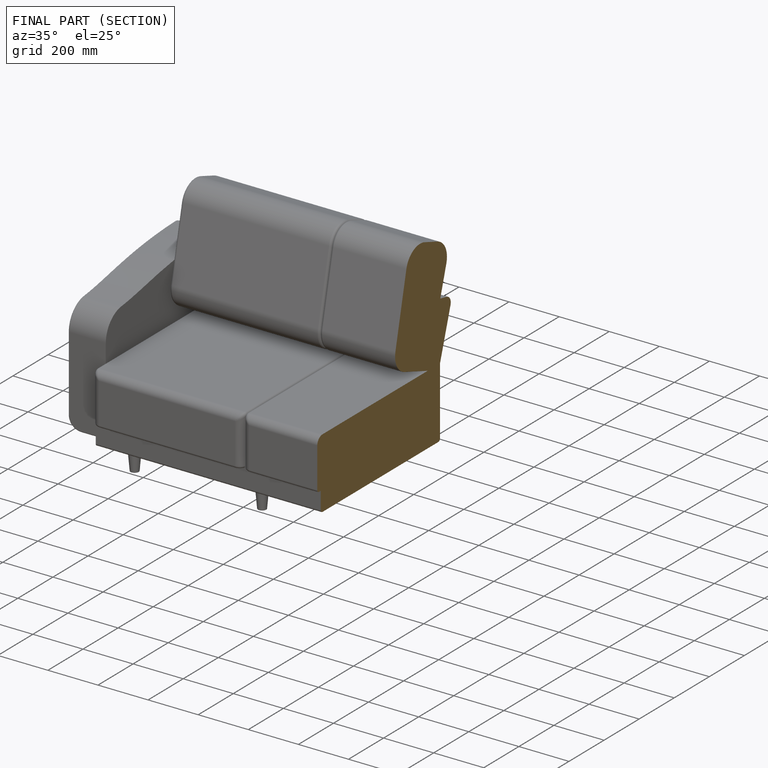
[diagram: finished part — half-section view (interior)]
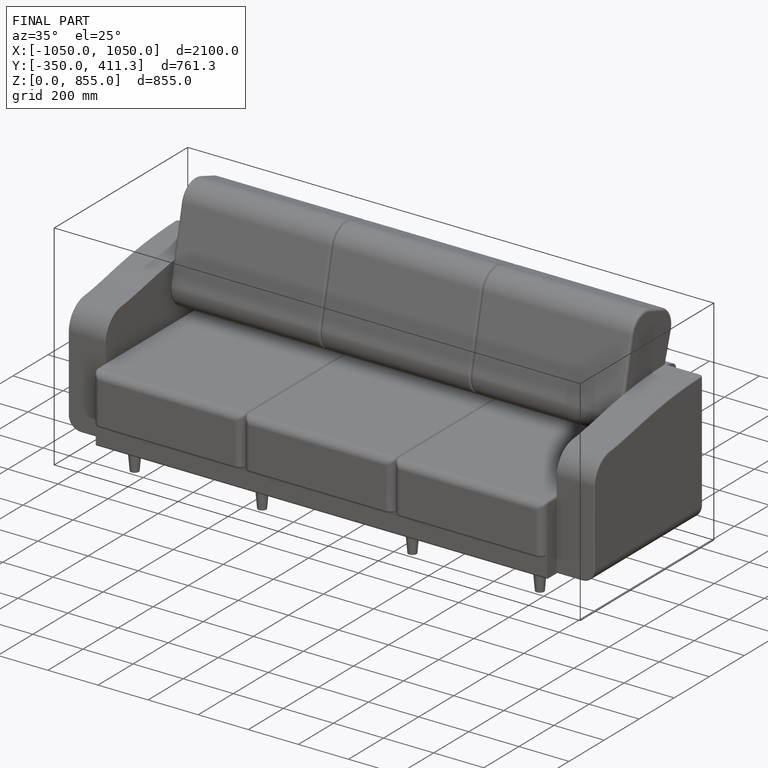
[diagram: finished part — iso view with bounding-box wireframe]
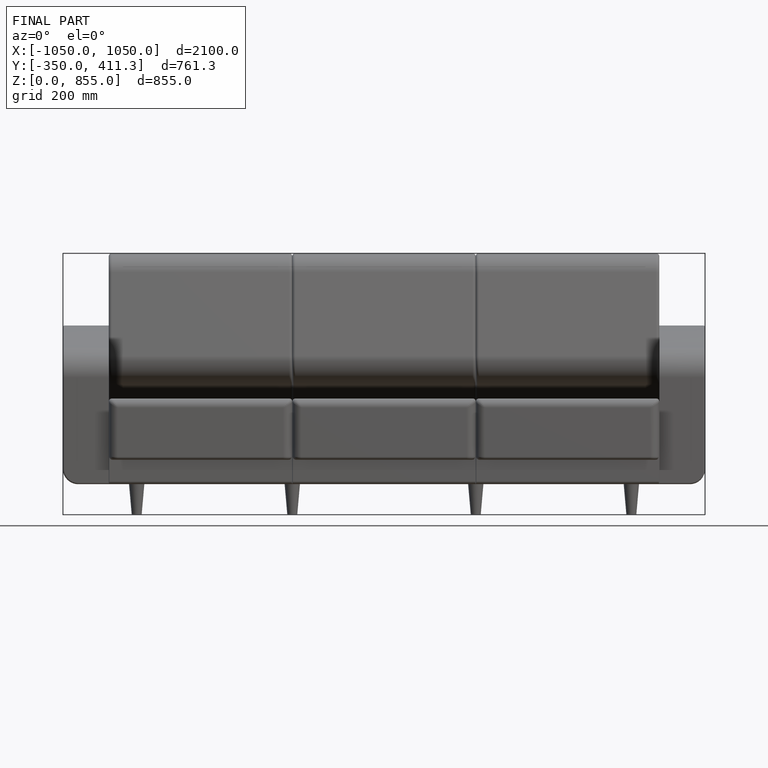
[diagram: finished part — front view with bounding-box wireframe]
